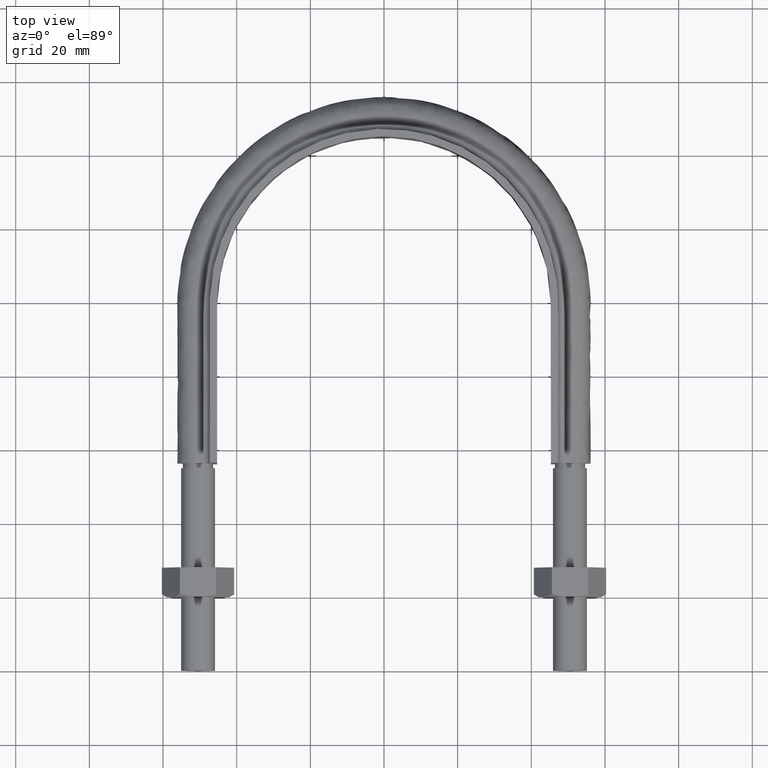
[diagram: clean part render]
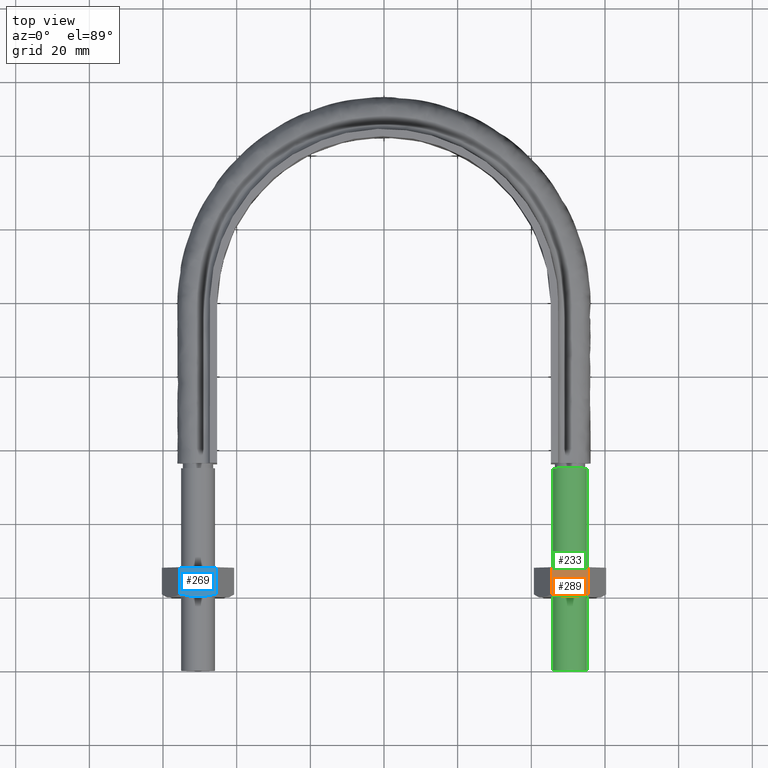
[diagram: same view with three faces highlighted in distinct colors, each labeled with its STEP entity id]
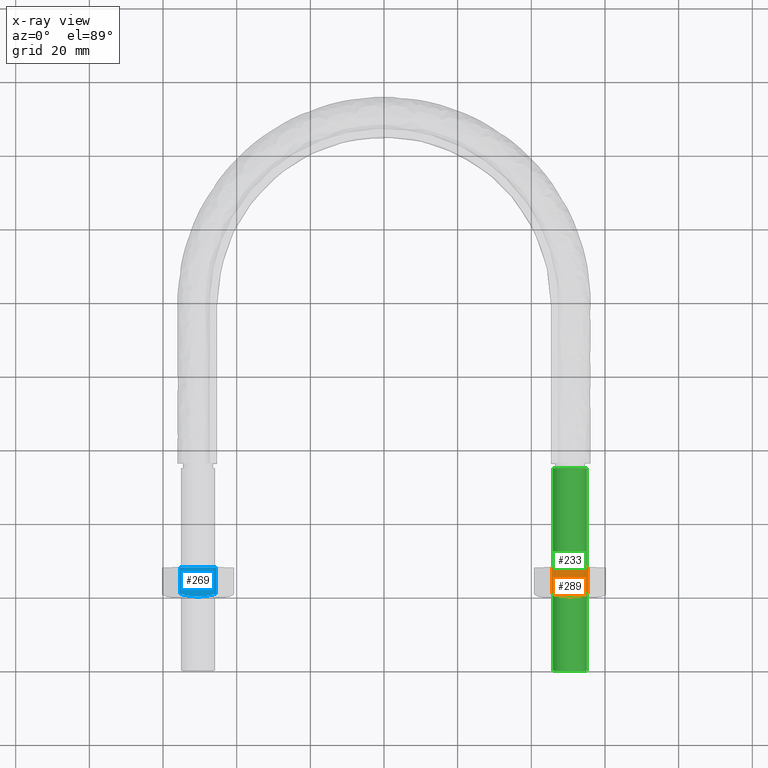
[diagram: x-ray of the same camera — body ghosted, the three highlighted faces saturated]
A machine part, top view with three faces highlighted in distinct colors.
The next image is the same camera in x-ray (body ghosted, the three faces saturated) — at least one of them is partly hidden behind the body in this view.
Their STEP definitions:

[orange] entity #289 — the highlighted planar face has unit normal (-0, 0, -1).
#289 = ADVANCED_FACE( '', ( #454 ), #455, .F. );
#454 = FACE_OUTER_BOUND( '', #1440, .T. );
#455 = PLANE( '', #1441 );
#1440 = EDGE_LOOP( '', ( #1951, #1952, #1953, #1954, #1955 ) );
#1441 = AXIS2_PLACEMENT_3D( '', #1956, #1957, #1958 );
#1951 = ORIENTED_EDGE( '', *, *, #2104, .F. );
#1952 = ORIENTED_EDGE( '', *, *, #2116, .F. );
#1953 = ORIENTED_EDGE( '', *, *, #2137, .F. );
#1954 = ORIENTED_EDGE( '', *, *, #2135, .F. );
#1955 = ORIENTED_EDGE( '', *, *, #2140, .F. );
#1956 = CARTESIAN_POINT( '', ( 45.5925227118882, 28.0000000000000, 8.50000000000000 ) );
#1957 = DIRECTION( '', ( -1.11022302462516E-016, 6.12303176911189E-017, -1.00000000000000 ) );
#1958 = DIRECTION( '', ( -1.00000000000000, 0.000000000000000, 1.11022302462516E-016 ) );
#2104 = EDGE_CURVE( '', #2330, #2332, #2333, .T. );
#2116 = EDGE_CURVE( '', #2350, #2330, #2352, .T. );
#2135 = EDGE_CURVE( '', #2382, #2374, #2384, .T. );
#2137 = EDGE_CURVE( '', #2374, #2350, #2386, .F. );
#2140 = EDGE_CURVE( '', #2332, #2382, #2389, .T. );
#2330 = VERTEX_POINT( '', #2940 );
#2332 = VERTEX_POINT( '', #2942 );
#2333 = B_SPLINE_CURVE_WITH_KNOTS( '', 3, ( #2943, #2944, #2945, #2946, #2947, #2948 ), .UNSPECIFIED., .F., .F., ( 4, 2, 4 ), ( 0.000000000000000, 0.00246745482903606, 0.00493490965807212 ), .UNSPECIFIED. );
#2350 = VERTEX_POINT( '', #2978 );
#2352 = B_SPLINE_CURVE_WITH_KNOTS( '', 3, ( #2980, #2981, #2982, #2983, #2984, #2985 ), .UNSPECIFIED., .F., .F., ( 4, 2, 4 ), ( 6.93889390390723E-018, 0.00246745482903606, 0.00493490965807212 ), .UNSPECIFIED. );
#2374 = VERTEX_POINT( '', #3021 );
#2382 = VERTEX_POINT( '', #3031 );
#2384 = LINE( '', #3033, #3034 );
#2386 = LINE( '', #3037, #3038 );
#2389 = LINE( '', #3047, #3048 );
#2940 = CARTESIAN_POINT( '', ( 50.5000000000000, 20.0000000000000, 8.50000000000000 ) );
#2942 = CARTESIAN_POINT( '', ( 45.6225006406971, 20.7505553499465, 8.50000000000000 ) );
#2943 = CARTESIAN_POINT( '', ( 50.5000000000000, 20.0000000000000, 8.50000000000000 ) );
#2944 = CARTESIAN_POINT( '', ( 49.6678340498093, 20.0000000000000, 8.50000000000000 ) );
#2945 = CARTESIAN_POINT( '', ( 48.8466937523143, 20.0716504305290, 8.50000000000000 ) );
#2946 = CARTESIAN_POINT( '', ( 47.2225568243371, 20.3328582843707, 8.50000000000000 ) );
#2947 = CARTESIAN_POINT( '', ( 46.4194282933227, 20.5215585493657, 8.50000000000000 ) );
#2948 = CARTESIAN_POINT( '', ( 45.6225006406971, 20.7505553499465, 8.50000000000000 ) );
#2978 = CARTESIAN_POINT( '', ( 55.3774993593029, 20.7505553499465, 8.50000000000000 ) );
#2980 = CARTESIAN_POINT( '', ( 55.3774993593029, 20.7505553499465, 8.50000000000000 ) );
#2981 = CARTESIAN_POINT( '', ( 54.5805717066773, 20.5215585493657, 8.50000000000000 ) );
#2982 = CARTESIAN_POINT( '', ( 53.7774431756629, 20.3328582843707, 8.50000000000000 ) );
#2983 = CARTESIAN_POINT( '', ( 52.1533062476857, 20.0716504305290, 8.50000000000000 ) );
#2984 = CARTESIAN_POINT( '', ( 51.3321659501907, 20.0000000000000, 8.50000000000000 ) );
#2985 = CARTESIAN_POINT( '', ( 50.5000000000000, 20.0000000000000, 8.50000000000000 ) );
#3021 = CARTESIAN_POINT( '', ( 55.3774993593029, 28.0000000000000, 8.50000000000000 ) );
#3031 = CARTESIAN_POINT( '', ( 45.6225006406971, 28.0000000000000, 8.50000000000000 ) );
#3033 = CARTESIAN_POINT( '', ( 45.6000000000000, 28.0000000000000, 8.50000000000000 ) );
#3034 = VECTOR( '', #3278, 1000.00000000000 );
#3037 = CARTESIAN_POINT( '', ( 55.3774993593029, 28.0000000000000, 8.50000000000000 ) );
#3038 = VECTOR( '', #3280, 1000.00000000000 );
#3047 = CARTESIAN_POINT( '', ( 45.6225006406971, 28.0000000000000, 8.50000000000000 ) );
#3048 = VECTOR( '', #3282, 1000.00000000000 );
#3278 = DIRECTION( '', ( 1.00000000000000, -2.44921270764475E-016, -1.11022302462516E-016 ) );
#3280 = DIRECTION( '', ( 2.44921270764475E-016, 1.00000000000000, 6.12303176911190E-017 ) );
#3282 = DIRECTION( '', ( 2.44921270764475E-016, 1.00000000000000, 6.12303176911190E-017 ) );

[blue] entity #269 — the highlighted planar face has unit normal (-0, 0, -1).
#269 = ADVANCED_FACE( '', ( #411 ), #412, .F. );
#411 = FACE_OUTER_BOUND( '', #1397, .T. );
#412 = PLANE( '', #1398 );
#1397 = EDGE_LOOP( '', ( #1795, #1796, #1797, #1798, #1799 ) );
#1398 = AXIS2_PLACEMENT_3D( '', #1800, #1801, #1802 );
#1795 = ORIENTED_EDGE( '', *, *, #2078, .F. );
#1796 = ORIENTED_EDGE( '', *, *, #2058, .F. );
#1797 = ORIENTED_EDGE( '', *, *, #2084, .F. );
#1798 = ORIENTED_EDGE( '', *, *, #2089, .F. );
#1799 = ORIENTED_EDGE( '', *, *, #2090, .F. );
#1800 = CARTESIAN_POINT( '', ( -55.4074772881118, 28.0000000000000, 8.50000000000000 ) );
#1801 = DIRECTION( '', ( -1.11022302462516E-016, 6.12303176911189E-017, -1.00000000000000 ) );
#1802 = DIRECTION( '', ( -1.00000000000000, 0.000000000000000, 1.11022302462516E-016 ) );
#2058 = EDGE_CURVE( '', #2255, #2251, #2257, .T. );
#2078 = EDGE_CURVE( '', #2251, #2289, #2290, .T. );
#2084 = EDGE_CURVE( '', #2297, #2255, #2299, .F. );
#2089 = EDGE_CURVE( '', #2303, #2297, #2305, .T. );
#2090 = EDGE_CURVE( '', #2289, #2303, #2306, .T. );
#2251 = VERTEX_POINT( '', #2784 );
#2255 = VERTEX_POINT( '', #2793 );
#2257 = B_SPLINE_CURVE_WITH_KNOTS( '', 3, ( #2795, #2796, #2797, #2798, #2799, #2800 ), .UNSPECIFIED., .F., .F., ( 4, 2, 4 ), ( 1.43048962453820E-017, 0.00246745482903607, 0.00493490965807213 ), .UNSPECIFIED. );
#2289 = VERTEX_POINT( '', #2858 );
#2290 = B_SPLINE_CURVE_WITH_KNOTS( '', 3, ( #2859, #2860, #2861, #2862, #2863, #2864 ), .UNSPECIFIED., .F., .F., ( 4, 2, 4 ), ( 0.000000000000000, 0.00246745482903606, 0.00493490965807211 ), .UNSPECIFIED. );
#2297 = VERTEX_POINT( '', #2874 );
#2299 = LINE( '', #2876, #2877 );
#2303 = VERTEX_POINT( '', #2883 );
#2305 = LINE( '', #2885, #2886 );
#2306 = LINE( '', #2887, #2888 );
#2784 = CARTESIAN_POINT( '', ( -50.5000000000000, 20.0000000000000, 8.50000000000000 ) );
#2793 = CARTESIAN_POINT( '', ( -45.6225006406971, 20.7505553499465, 8.50000000000000 ) );
#2795 = CARTESIAN_POINT( '', ( -45.6225006406971, 20.7505553499465, 8.50000000000000 ) );
#2796 = CARTESIAN_POINT( '', ( -46.4194282933227, 20.5215585493657, 8.50000000000000 ) );
#2797 = CARTESIAN_POINT( '', ( -47.2225568243372, 20.3328582843707, 8.50000000000000 ) );
#2798 = CARTESIAN_POINT( '', ( -48.8466937523143, 20.0716504305290, 8.50000000000000 ) );
#2799 = CARTESIAN_POINT( '', ( -49.6678340498093, 20.0000000000000, 8.50000000000000 ) );
#2800 = CARTESIAN_POINT( '', ( -50.5000000000000, 20.0000000000000, 8.50000000000000 ) );
#2858 = CARTESIAN_POINT( '', ( -55.3774993593029, 20.7505553499465, 8.50000000000000 ) );
#2859 = CARTESIAN_POINT( '', ( -50.5000000000000, 20.0000000000000, 8.50000000000000 ) );
#2860 = CARTESIAN_POINT( '', ( -51.3321659501907, 20.0000000000000, 8.50000000000000 ) );
#2861 = CARTESIAN_POINT( '', ( -52.1533062476857, 20.0716504305290, 8.50000000000000 ) );
#2862 = CARTESIAN_POINT( '', ( -53.7774431756629, 20.3328582843707, 8.50000000000000 ) );
#2863 = CARTESIAN_POINT( '', ( -54.5805717066773, 20.5215585493657, 8.50000000000000 ) );
#2864 = CARTESIAN_POINT( '', ( -55.3774993593029, 20.7505553499465, 8.50000000000000 ) );
#2874 = CARTESIAN_POINT( '', ( -45.6225006406971, 28.0000000000000, 8.50000000000000 ) );
#2876 = CARTESIAN_POINT( '', ( -45.6225006406971, 28.0000000000000, 8.50000000000000 ) );
#2877 = VECTOR( '', #3192, 1000.00000000000 );
#2883 = CARTESIAN_POINT( '', ( -55.3774993593029, 28.0000000000000, 8.50000000000000 ) );
#2885 = CARTESIAN_POINT( '', ( -55.4000000000000, 28.0000000000000, 8.50000000000000 ) );
#2886 = VECTOR( '', #3201, 1000.00000000000 );
#2887 = CARTESIAN_POINT( '', ( -55.3774993593029, 28.0000000000000, 8.50000000000000 ) );
#2888 = VECTOR( '', #3202, 1000.00000000000 );
#3192 = DIRECTION( '', ( 2.44921270764475E-016, 1.00000000000000, 6.12303176911190E-017 ) );
#3201 = DIRECTION( '', ( 1.00000000000000, -2.44921270764475E-016, -1.11022302462516E-016 ) );
#3202 = DIRECTION( '', ( 2.44921270764475E-016, 1.00000000000000, 6.12303176911190E-017 ) );

[green] entity #233 — the highlighted cylindrical surface (bore or boss wall) has radius 4.6 mm, axis along (0, 1, 0).
#233 = ADVANCED_FACE( '', ( #329, #330 ), #331, .T. );
#329 = FACE_OUTER_BOUND( '', #660, .T. );
#330 = FACE_OUTER_BOUND( '', #661, .T. );
#331 = CYLINDRICAL_SURFACE( '', #662, 4.60000000000000 );
#660 = EDGE_LOOP( '', ( #1543 ) );
#661 = EDGE_LOOP( '', ( #1544 ) );
#662 = AXIS2_PLACEMENT_3D( '', #1545, #1546, #1547 );
#1543 = ORIENTED_EDGE( '', *, *, #2021, .T. );
#1544 = ORIENTED_EDGE( '', *, *, #2023, .F. );
#1545 = CARTESIAN_POINT( '', ( 50.5000000000000, 55.0000000000000, 3.42277475893354E-015 ) );
#1546 = DIRECTION( '', ( 2.44921270764475E-016, 1.00000000000000, 6.12303176911189E-017 ) );
#1547 = DIRECTION( '', ( 1.00000000000000, -2.44921270764475E-016, -7.49830360911069E-033 ) );
#2021 = EDGE_CURVE( '', #2189, #2189, #2190, .T. );
#2023 = EDGE_CURVE( '', #2193, #2193, #2194, .T. );
#2189 = VERTEX_POINT( '', #2481 );
#2190 = CIRCLE( '', #2482, 4.60000000000000 );
#2193 = VERTEX_POINT( '', #2485 );
#2194 = CIRCLE( '', #2486, 4.60000000000000 );
#2481 = CARTESIAN_POINT( '', ( 55.1000000000000, 55.0000000000000, 3.42277475893354E-015 ) );
#2482 = AXIS2_PLACEMENT_3D( '', #3101, #3102, #3103 );
#2485 = CARTESIAN_POINT( '', ( 55.1000000000000, -1.34951620191226E-014, 5.51072859220066E-017 ) );
#2486 = AXIS2_PLACEMENT_3D( '', #3107, #3108, #3109 );
#3101 = CARTESIAN_POINT( '', ( 50.5000000000000, 55.0000000000000, 3.42277475893354E-015 ) );
#3102 = DIRECTION( '', ( -2.44921270764476E-016, -1.00000000000000, -6.12303176911189E-017 ) );
#3103 = DIRECTION( '', ( 1.00000000000000, -2.44921270764476E-016, -7.49830360911070E-033 ) );
#3107 = CARTESIAN_POINT( '', ( 50.5000000000000, -1.23685241736060E-014, 5.51072859220066E-017 ) );
#3108 = DIRECTION( '', ( -2.44921270764476E-016, -1.00000000000000, -6.12303176911189E-017 ) );
#3109 = DIRECTION( '', ( 1.00000000000000, -2.44921270764476E-016, -7.49830360911070E-033 ) );